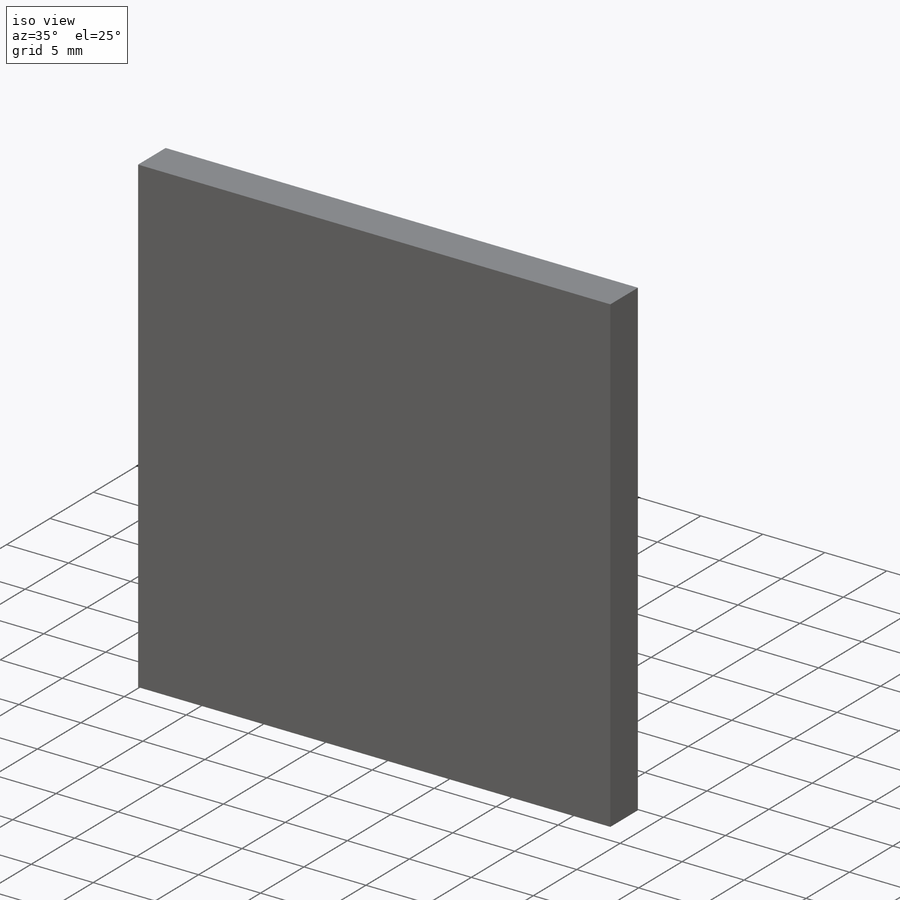
[diagram: iso view]
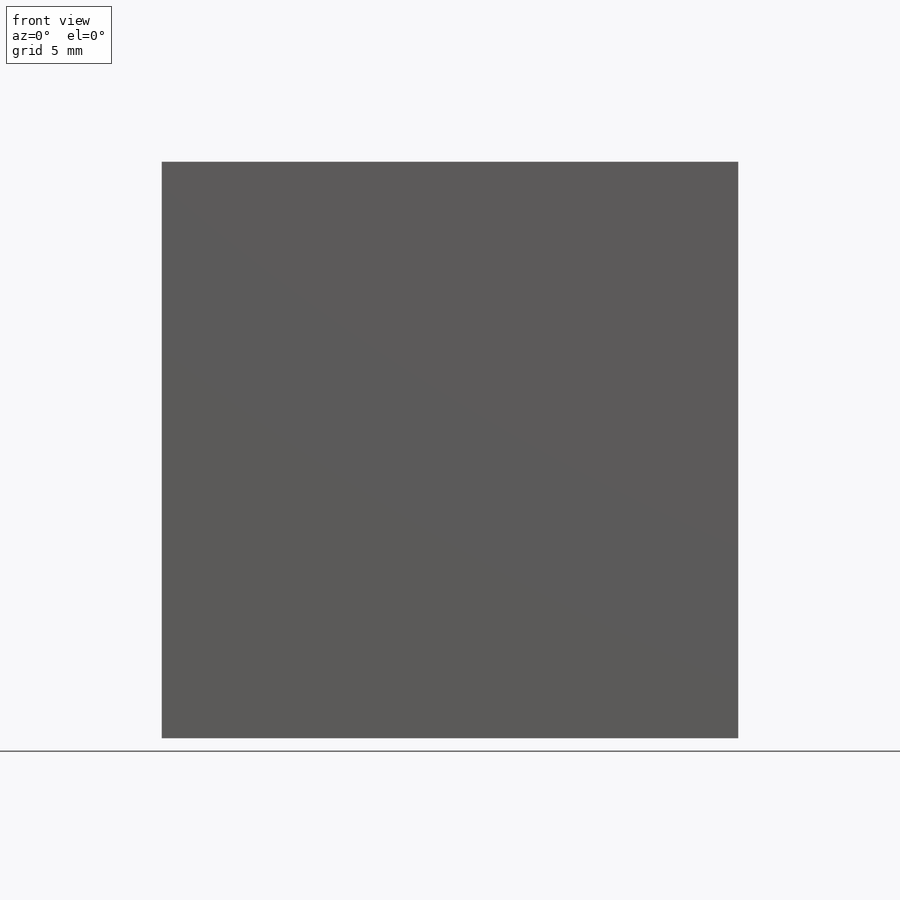
[diagram: front view]
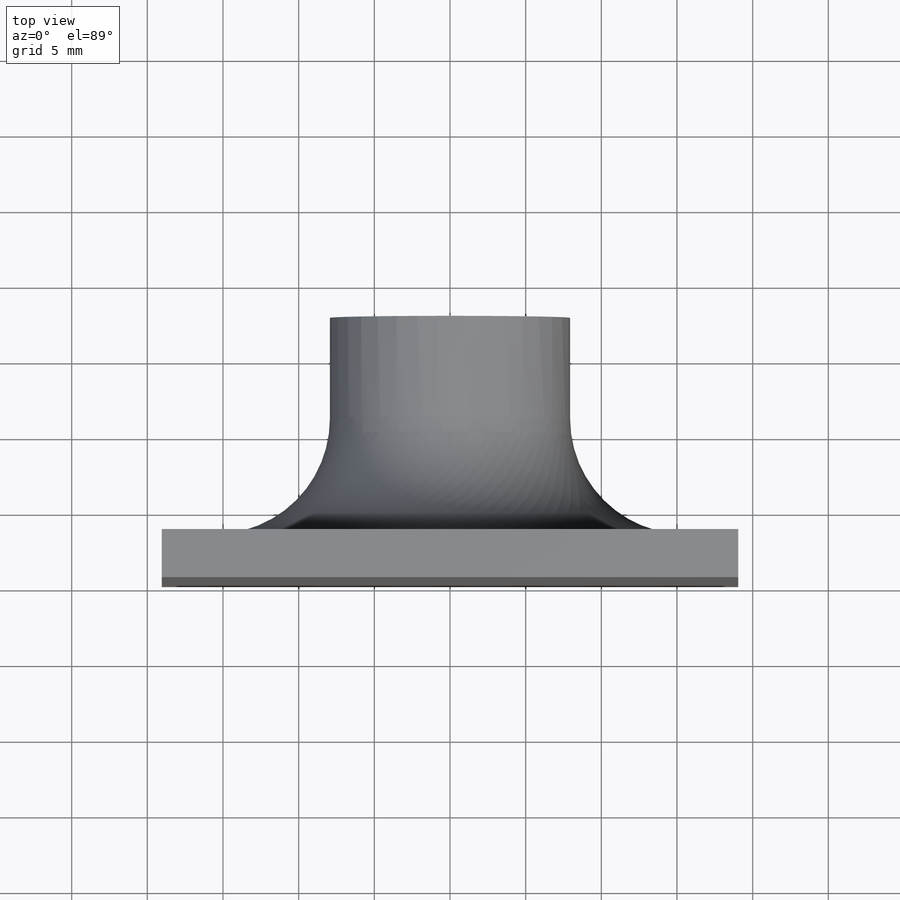
[diagram: top view]
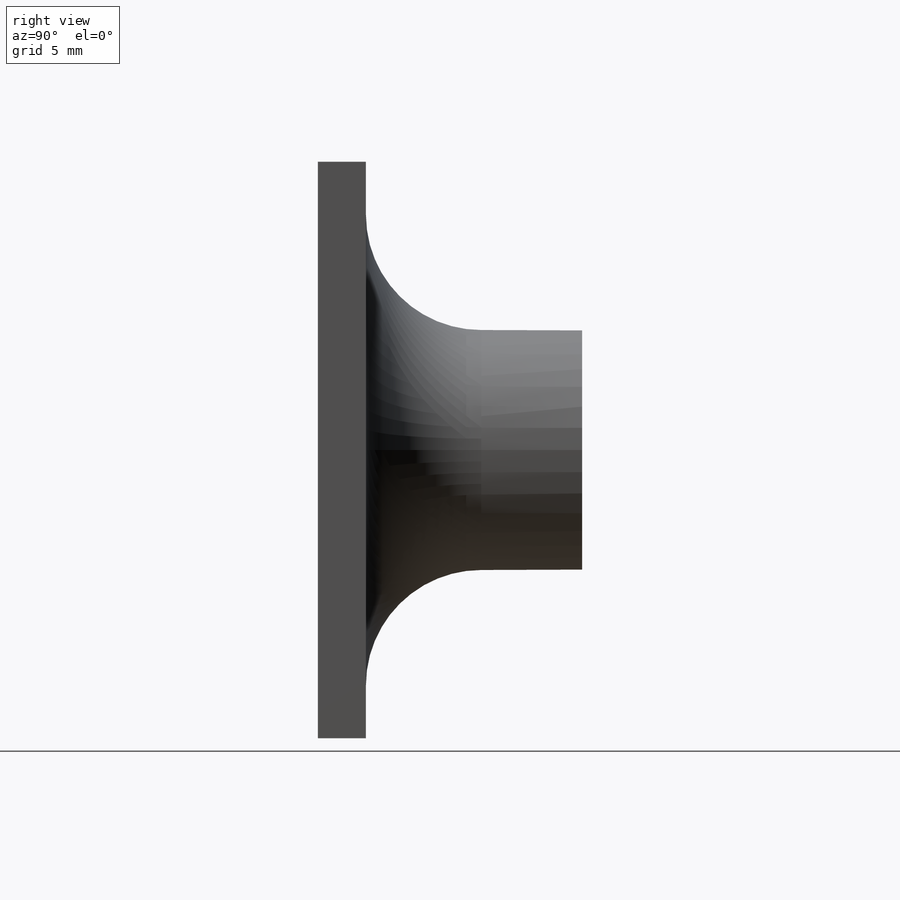
[diagram: right view]
SOLIDWORKS PART (.sldprt)
format: sldprt  version: not decoded by parser v0  size: 265,728 bytes
history: native  units: mm
features: fillet x10, sketch x6, extrude x2, cut_extrude x2, material x1, hole x1 (+13 scaffold rows collapsed)
feature tree (35):
  scaffold x13  (default folders/planes/origin — collapsed)
  material  "Material <not specified>"
  sketch  "Sketch1"  dims[D2=15.875mm D3=~10.31875mm D1=0.1905mm]
  extrude  "Boss-Extrude1"  Depth=12.7mm
  sketch  "Sketch2"  dims[D1=38.1mm D2=38.1mm]
  extrude  "Boss-Extrude2"  Depth=3.175mm
  fillet  "Fillet1"  Radius=7.62mm
  sketch  "Sketch4"  dims[D1=7.62mm]
  cut_extrude  "Cut-Extrude1"  [1 undecoded]
  fillet  "Fillet3"  Radius=1.27mm
  fillet  "Fillet4"  Radius=1.27mm
  fillet  "Fillet5"  Radius=1.27mm
  fillet  "Fillet6"  Radius=1.27mm
  sketch  "Sketch7"  dims[D1=2.286mm]
  cut_extrude  "Cut-Extrude3"  Depth=2.54mm
  hole  "#46 (0.081) Diameter Hole1"  Diameter=2.0574mm Depth=26.9875mm
  sketch  "Sketch8"
  sketch  "Sketch9"  dims[Thru Hole Dia.=2.0574mm Thru Hole Depth=26.9875mm]
  fillet  "Fillet7"  Radius=2.54mm
  fillet  "Fillet8"  Radius=1.27mm
  fillet  "Fillet9"  Radius=1.27mm
  fillet  "Fillet10"  Radius=1.27mm
  fillet  "Fillet11"  Radius=1.27mm
decode coverage: 19 of 21 modeling features carry decoded parameters
note: ~ marks probable driven/reference dimensions
note: 1 parameter value undecoded
note: suppression state not decoded; provenance and decode notes live in map.json
